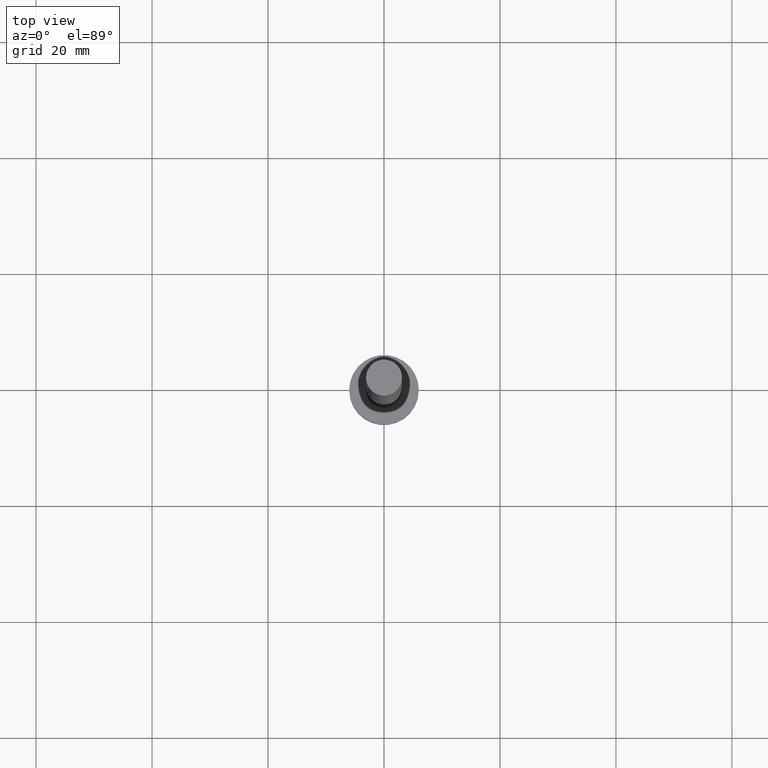
[diagram: clean part render]
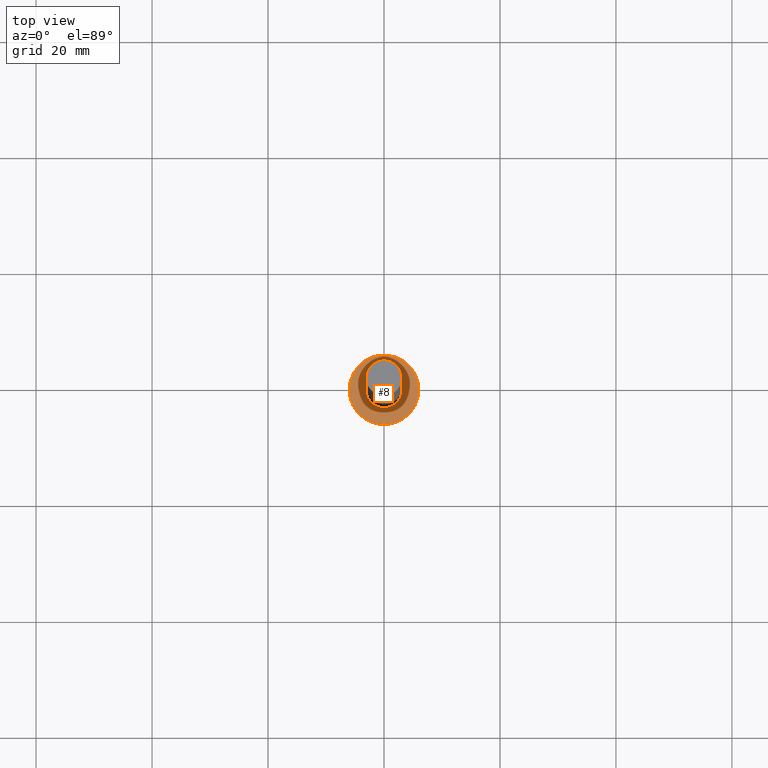
[diagram: same view with one face highlighted and labeled with its STEP entity id]
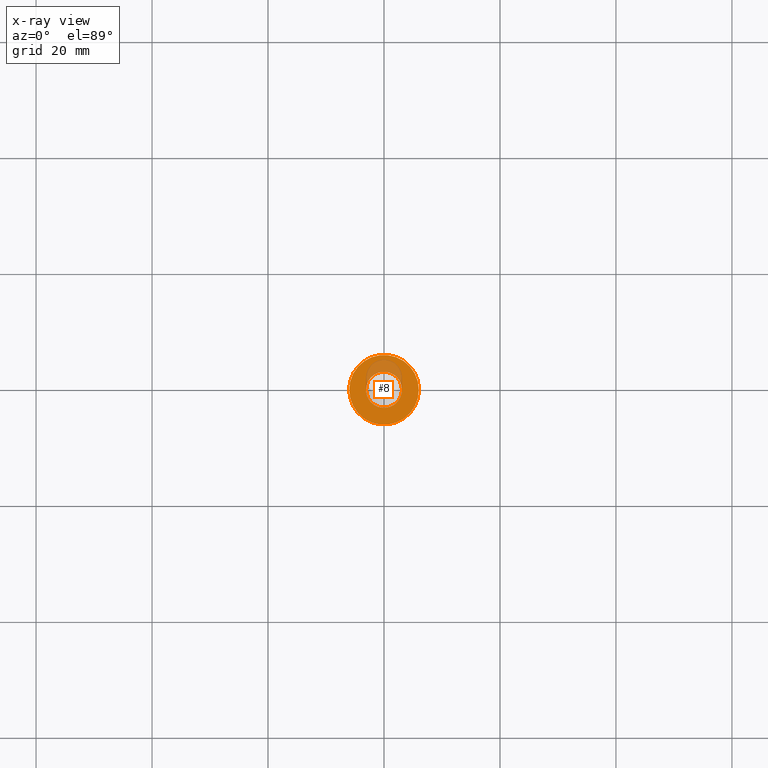
[diagram: x-ray of the same camera — body ghosted, the highlighted face saturated]
A machine part, top view. The second image highlights one B-rep face of the part: STEP entity #8.
The next image is the same camera in x-ray: the body ghosted, the highlighted face saturated — about 16% of this face is hidden behind the body in this view.
In plain terms, the highlighted planar face has unit normal (0, 0, 1).
Its self-contained STEP definition (entity closure, byte-faithful):
#3 = DIRECTION ( 'NONE',  ( 1.000000000000000000, 0.000000000000000000, 0.000000000000000000 ) ) ;
#8 = ADVANCED_FACE ( 'NONE', ( #232, #240 ), #60, .T. ) ;
#10 = CARTESIAN_POINT ( 'NONE',  ( 0.000000000000000000, 0.000000000000000000, 5.000000000000000000 ) ) ;
#14 = ORIENTED_EDGE ( 'NONE', *, *, #157, .T. ) ;
#16 = AXIS2_PLACEMENT_3D ( 'NONE', #182, #145, #3 ) ;
#26 = DIRECTION ( 'NONE',  ( 0.000000000000000000, 0.000000000000000000, 1.000000000000000000 ) ) ;
#28 = VERTEX_POINT ( 'NONE', #125 ) ;
#32 = CIRCLE ( 'NONE', #97, 3.100000000000000089 ) ;
#36 = ORIENTED_EDGE ( 'NONE', *, *, #78, .F. ) ;
#38 = EDGE_CURVE ( 'NONE', #138, #28, #136, .T. ) ;
#46 = CARTESIAN_POINT ( 'NONE',  ( 3.100000000000000089, 3.796405077356794918E-16, 5.000000000000000000 ) ) ;
#50 = CARTESIAN_POINT ( 'NONE',  ( 0.000000000000000000, 0.000000000000000000, 5.000000000000000000 ) ) ;
#60 = PLANE ( 'NONE',  #101 ) ;
#61 = CIRCLE ( 'NONE', #148, 6.000000000000000888 ) ;
#65 = CARTESIAN_POINT ( 'NONE',  ( 0.000000000000000000, 0.000000000000000000, 5.000000000000000000 ) ) ;
#78 = EDGE_CURVE ( 'NONE', #194, #118, #32, .T. ) ;
#80 = DIRECTION ( 'NONE',  ( 0.000000000000000000, 0.000000000000000000, 1.000000000000000000 ) ) ;
#83 = CARTESIAN_POINT ( 'NONE',  ( -6.000000000000000888, 0.000000000000000000, 5.000000000000000000 ) ) ;
#97 = AXIS2_PLACEMENT_3D ( 'NONE', #50, #105, #166 ) ;
#101 = AXIS2_PLACEMENT_3D ( 'NONE', #65, #80, #186 ) ;
#105 = DIRECTION ( 'NONE',  ( 0.000000000000000000, 0.000000000000000000, 1.000000000000000000 ) ) ;
#112 = DIRECTION ( 'NONE',  ( 1.000000000000000000, 0.000000000000000000, 0.000000000000000000 ) ) ;
#113 = ORIENTED_EDGE ( 'NONE', *, *, #114, .F. ) ;
#114 = EDGE_CURVE ( 'NONE', #118, #194, #128, .T. ) ;
#118 = VERTEX_POINT ( 'NONE', #46 ) ;
#125 = CARTESIAN_POINT ( 'NONE',  ( 6.000000000000000888, 7.347880794884120722E-16, 5.000000000000000000 ) ) ;
#128 = CIRCLE ( 'NONE', #16, 3.100000000000000089 ) ;
#136 = CIRCLE ( 'NONE', #193, 6.000000000000000888 ) ;
#138 = VERTEX_POINT ( 'NONE', #83 ) ;
#145 = DIRECTION ( 'NONE',  ( 0.000000000000000000, 0.000000000000000000, 1.000000000000000000 ) ) ;
#148 = AXIS2_PLACEMENT_3D ( 'NONE', #10, #226, #112 ) ;
#150 = CARTESIAN_POINT ( 'NONE',  ( -3.100000000000000089, 0.000000000000000000, 5.000000000000000000 ) ) ;
#157 = EDGE_CURVE ( 'NONE', #28, #138, #61, .T. ) ;
#163 = EDGE_LOOP ( 'NONE', ( #36, #113 ) ) ;
#166 = DIRECTION ( 'NONE',  ( 1.000000000000000000, 0.000000000000000000, 0.000000000000000000 ) ) ;
#175 = ORIENTED_EDGE ( 'NONE', *, *, #38, .T. ) ;
#178 = EDGE_LOOP ( 'NONE', ( #175, #14 ) ) ;
#181 = DIRECTION ( 'NONE',  ( 1.000000000000000000, 0.000000000000000000, 0.000000000000000000 ) ) ;
#182 = CARTESIAN_POINT ( 'NONE',  ( 0.000000000000000000, 0.000000000000000000, 5.000000000000000000 ) ) ;
#186 = DIRECTION ( 'NONE',  ( 1.000000000000000000, 0.000000000000000000, -0.000000000000000000 ) ) ;
#193 = AXIS2_PLACEMENT_3D ( 'NONE', #233, #26, #181 ) ;
#194 = VERTEX_POINT ( 'NONE', #150 ) ;
#226 = DIRECTION ( 'NONE',  ( 0.000000000000000000, 0.000000000000000000, 1.000000000000000000 ) ) ;
#232 = FACE_BOUND ( 'NONE', #163, .T. ) ;
#233 = CARTESIAN_POINT ( 'NONE',  ( 0.000000000000000000, 0.000000000000000000, 5.000000000000000000 ) ) ;
#240 = FACE_OUTER_BOUND ( 'NONE', #178, .T. ) ;